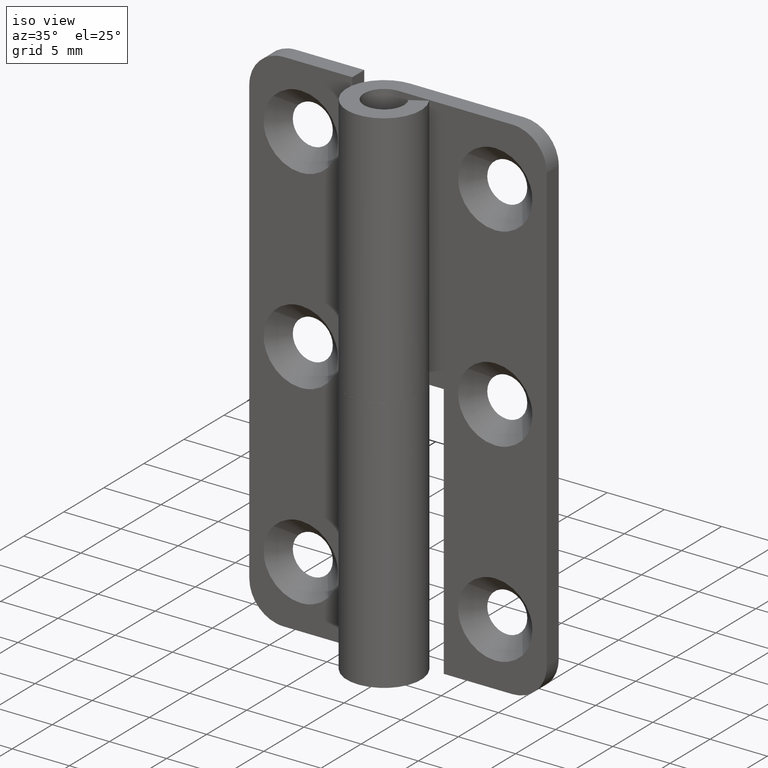
[diagram: clean part render]
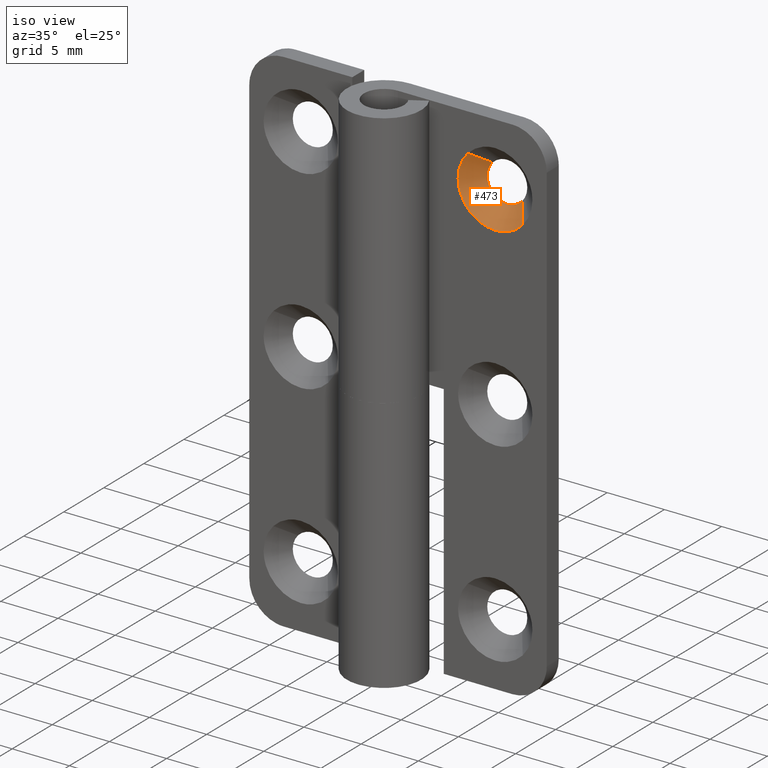
[diagram: same view with one face highlighted and labeled with its STEP entity id]
A machine part, iso view. The second image highlights one B-rep face of the part: STEP entity #473.
In plain terms, the highlighted face is a freeform B-spline surface patch.
Its self-contained STEP definition (entity closure, byte-faithful):
#365=CARTESIAN_POINT('',(7.237411049294122,3.287497950000000,40.656963615501702));
#366=CARTESIAN_POINT('',(6.080461433792380,3.287497950000000,39.394374664795819));
#367=CARTESIAN_POINT('',(7.343050384498257,3.287497950000000,38.237425049294082));
#368=CARTESIAN_POINT('',(8.605639335204135,3.287497950000000,37.080475433792337));
#369=CARTESIAN_POINT('',(9.762588950705878,3.287497950000000,38.343064384498213));
#370=CARTESIAN_POINT('',(6.075509595518923,1.711562551250000,41.721650138732073));
#371=CARTESIAN_POINT('',(3.853873456786801,1.711562551250000,39.297159734251004));
#372=CARTESIAN_POINT('',(6.278363861267877,1.711562551250000,37.075523595518867));
#373=CARTESIAN_POINT('',(8.702854265748954,1.711562551250000,34.853887456786744));
#374=CARTESIAN_POINT('',(10.924490404481080,1.711562551250000,37.278377861267828));
#382=(BOUNDED_SURFACE()B_SPLINE_SURFACE(2,1,((#365,#370),(#366,#371),(#367,#372),(#368,#373),(#369,#374)),.UNSPECIFIED.,.F.,.F.,.U.)B_SPLINE_SURFACE_WITH_KNOTS((3,2,3),(2,2),(0.0,5.448461561151317,10.896923122302640),(0.0,2.228709214336105),.UNSPECIFIED.)GEOMETRIC_REPRESENTATION_ITEM()RATIONAL_B_SPLINE_SURFACE(((1.0,1.0),(0.707106781186548,0.707106781186548),(1.0,1.0),(0.707106781186548,0.707106781186548),(1.0,1.0)))REPRESENTATION_ITEM('')SURFACE());
#383=CARTESIAN_POINT('',(5.250000000000024,1.750000000000000,39.500014390402910));
#384=VERTEX_POINT('',#383);
#385=CARTESIAN_POINT('',(6.103848547643068,1.749999951437242,41.695682272990290));
#386=VERTEX_POINT('',#385);
#387=CARTESIAN_POINT('',(5.250000000000024,1.750000000000000,39.500014390402910));
#388=CARTESIAN_POINT('',(5.249905263666113,1.749999993612510,39.788812092109779));
#389=CARTESIAN_POINT('',(5.314035780303749,1.749999983060951,40.265879624010758));
#390=CARTESIAN_POINT('',(5.593272470421466,1.749999966323279,41.022639770490109));
#391=CARTESIAN_POINT('',(5.883160129097754,1.749999956758604,41.455087896420970));
#392=CARTESIAN_POINT('',(6.103848547643068,1.749999951437242,41.695682272990290));
#393=B_SPLINE_CURVE_WITH_KNOTS('',3,(#387,#388,#389,#390,#391,#392),.UNSPECIFIED.,.F.,.U.,(4,1,1,4),(0.000000011508423,0.866367289098910,1.431377033139097,2.410749185026033),.UNSPECIFIED.);
#394=EDGE_CURVE('',#384,#386,#393,.T.);
#395=ORIENTED_EDGE('',*,*,#394,.F.);
#396=CARTESIAN_POINT('',(8.500000000000000,1.750000000000000,36.250013999999950));
#397=VERTEX_POINT('',#396);
#398=CARTESIAN_POINT('',(8.500000000000000,1.750000000000000,36.250013999999950));
#399=CARTESIAN_POINT('',(8.154314993950230,1.750000000000003,36.249802802114502));
#400=CARTESIAN_POINT('',(7.582790762308839,1.749999999999997,36.342130937134158));
#401=CARTESIAN_POINT('',(6.839389454818980,1.750000000000004,36.677147649660938));
#402=CARTESIAN_POINT('',(6.302210389102762,1.749999999999996,37.075540367421432));
#403=CARTESIAN_POINT('',(5.901511765844712,1.750000000000003,37.523192754402793));
#404=CARTESIAN_POINT('',(5.594844033654593,1.749999999999988,38.007472634926863));
#405=CARTESIAN_POINT('',(5.328968361964323,1.750000000000025,38.649233100464173));
#406=CARTESIAN_POINT('',(5.249854812960429,1.749999999999966,39.180930566027151));
#407=CARTESIAN_POINT('',(5.250000000000024,1.750000000000000,39.500014390402910));
#408=B_SPLINE_CURVE_WITH_KNOTS('',3,(#398,#399,#400,#401,#402,#403,#404,#405,#406,#407),.UNSPECIFIED.,.F.,.U.,(4,1,1,1,1,1,1,4),(0.000000048362739,1.036973805816351,1.715003788600368,2.432924922719289,3.031159580038018,3.509768746287797,4.147911748582389,5.105120314384822),.UNSPECIFIED.);
#409=EDGE_CURVE('',#397,#384,#408,.T.);
#410=ORIENTED_EDGE('',*,*,#409,.F.);
#411=CARTESIAN_POINT('',(10.896151452356939,1.749999951437239,37.304345727009597));
#412=VERTEX_POINT('',#411);
#413=CARTESIAN_POINT('',(10.896151452356939,1.749999951437239,37.304345727009597));
#414=CARTESIAN_POINT('',(10.725537181967020,1.749999954895075,37.118072944584227));
#415=CARTESIAN_POINT('',(10.351263035142541,1.749999962480485,36.794887488817913));
#416=CARTESIAN_POINT('',(9.776958385236968,1.749999974119905,36.491666757727693));
#417=CARTESIAN_POINT('',(9.159533052241700,1.749999986633253,36.297716479754477));
#418=CARTESIAN_POINT('',(8.752601685066400,1.749999994880526,36.249955528736969));
#419=CARTESIAN_POINT('',(8.500000000000000,1.750000000000000,36.250013999999950));
#420=B_SPLINE_CURVE_WITH_KNOTS('',3,(#413,#414,#415,#416,#417,#418,#419),.UNSPECIFIED.,.F.,.U.,(4,1,1,1,4),(0.000000014684428,0.757792213932789,1.473475589363535,1.936578730684353,2.694370929932206),.UNSPECIFIED.);
#421=EDGE_CURVE('',#412,#397,#420,.T.);
#422=ORIENTED_EDGE('',*,*,#421,.F.);
#423=CARTESIAN_POINT('',(9.790236962348232,3.249997932917373,38.317729649531401));
#424=VERTEX_POINT('',#423);
#425=CARTESIAN_POINT('',(9.790236962348232,3.249997932917373,38.317729649531401));
#426=CARTESIAN_POINT('',(10.896151452356939,1.749999951437239,37.304345727009597));
#427=QUASI_UNIFORM_CURVE('',1,(#425,#426),.UNSPECIFIED.,.F.,.U.);
#428=EDGE_CURVE('',#424,#412,#427,.T.);
#429=ORIENTED_EDGE('',*,*,#428,.F.);
#430=CARTESIAN_POINT('',(8.500000000000000,3.249998000000000,37.750011999999948));
#431=VERTEX_POINT('',#430);
#432=CARTESIAN_POINT('',(9.790236962348232,3.249997932917373,38.317729649531401));
#433=CARTESIAN_POINT('',(9.688164900207861,3.249997938224356,38.206280622883916));
#434=CARTESIAN_POINT('',(9.443258437078290,3.249997950957652,38.000253616013282));
#435=CARTESIAN_POINT('',(8.998698629828230,3.249997974071405,37.797711023802982));
#436=CARTESIAN_POINT('',(8.666241255320580,3.249997991356717,37.749963517300309));
#437=CARTESIAN_POINT('',(8.500000000000000,3.249998000000000,37.750011999999948));
#438=B_SPLINE_CURVE_WITH_KNOTS('',3,(#432,#433,#434,#435,#436,#437),.UNSPECIFIED.,.F.,.U.,(4,1,1,4),(0.000000018218344,0.453381404564136,0.952097669597981,1.450816824885660),.UNSPECIFIED.);
#439=EDGE_CURVE('',#424,#431,#438,.T.);
#440=ORIENTED_EDGE('',*,*,#439,.T.);
#441=CARTESIAN_POINT('',(6.749998000000082,3.249998000000000,39.500014538710978));
#442=VERTEX_POINT('',#441);
#443=CARTESIAN_POINT('',(8.500000000000000,3.249998000000000,37.750011999999948));
#444=CARTESIAN_POINT('',(8.292374308553987,3.249997999999993,37.749837266244413));
#445=CARTESIAN_POINT('',(7.956049873161674,3.249998000000010,37.810630143339822));
#446=CARTESIAN_POINT('',(7.492821457428682,3.249997999999982,38.043777910085467));
#447=CARTESIAN_POINT('',(7.185217385047078,3.249998000000053,38.319113043770727));
#448=CARTESIAN_POINT('',(6.961718737069086,3.249997999999904,38.645040447713157));
#449=CARTESIAN_POINT('',(6.798427288552587,3.249998000000063,39.013287275389189));
#450=CARTESIAN_POINT('',(6.749901923535721,3.249997999999971,39.313878938944413));
#451=CARTESIAN_POINT('',(6.749998000000082,3.249998000000000,39.500014538710978));
#452=B_SPLINE_CURVE_WITH_KNOTS('',3,(#443,#444,#445,#446,#447,#448,#449,#450,#451),.UNSPECIFIED.,.F.,.U.,(4,1,1,1,1,1,4),(0.000000065448394,0.622799807218267,1.009376781373587,1.546248330863985,1.846924437526762,2.190544170059304,2.748914265278361),.UNSPECIFIED.);
#453=EDGE_CURVE('',#431,#442,#452,.T.);
#454=ORIENTED_EDGE('',*,*,#453,.T.);
#455=CARTESIAN_POINT('',(7.209763037651767,3.249997932917373,40.682298350468500));
#456=VERTEX_POINT('',#455);
#457=CARTESIAN_POINT('',(6.749998000000082,3.249998000000000,39.500014538710978));
#458=CARTESIAN_POINT('',(6.749901759926154,3.249997990025150,39.675814506346811));
#459=CARTESIAN_POINT('',(6.789062219038067,3.249997975451676,39.932661258234781));
#460=CARTESIAN_POINT('',(6.946253277185724,3.249997952513307,40.336934223910660));
#461=CARTESIAN_POINT('',(7.090936065682096,3.249997940268301,40.552743155559497));
#462=CARTESIAN_POINT('',(7.209763037651767,3.249997932917373,40.682298350468500));
#463=B_SPLINE_CURVE_WITH_KNOTS('',3,(#457,#458,#459,#460,#461,#462),.UNSPECIFIED.,.F.,.U.,(4,1,1,4),(0.000000013333185,0.527355564183799,0.770741364892080,1.298096915763826),.UNSPECIFIED.);
#464=EDGE_CURVE('',#442,#456,#463,.T.);
#465=ORIENTED_EDGE('',*,*,#464,.T.);
#466=CARTESIAN_POINT('',(7.209763037651767,3.249997932917373,40.682298350468500));
#467=CARTESIAN_POINT('',(6.103848547643068,1.749999951437242,41.695682272990290));
#468=QUASI_UNIFORM_CURVE('',1,(#466,#467),.UNSPECIFIED.,.F.,.U.);
#469=EDGE_CURVE('',#456,#386,#468,.T.);
#470=ORIENTED_EDGE('',*,*,#469,.T.);
#471=EDGE_LOOP('',(#395,#410,#422,#429,#440,#454,#465,#470));
#472=FACE_OUTER_BOUND('',#471,.T.);
#473=ADVANCED_FACE('',(#472),#382,.F.);